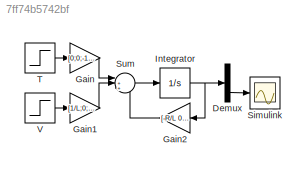
MODEL slx_7ff74b5742bf
KIND model
CONFIG AbsTol = auto
CONFIG EnableMultiTasking = off
CONFIG FixedStep = auto
CONFIG MaxStep = auto
CONFIG MinStep = auto
CONFIG RelTol = 1e-3
CONFIG SampleTimeConstraint = Unconstrained
CONFIG SolverName = VariableStepAuto
CONFIG StartTime = 0.0
CONFIG StopTime = 10.0
BLOCK [Demux] Demux
  Outputs = 3
BLOCK [Gain] Gain
  Gain = [0;0;-1/J]
BLOCK [Gain] Gain1
  Gain = [1/L;0;0]
BLOCK [Gain] Gain2
  Gain = [-R/L 0 -K/L;0 0 1;K/J 0 -B/J]
  Multiplication = Matrix(K*u)
  NameLocation = top
BLOCK [Integrator] Integrator
BLOCK [Scope] Simulink
  Floating = off
  NumInputPorts = 1
  ScopeSpecificationString = Simulink.scopes.TimeScopeBlockCfg('CurrentConfiguration', extmgr.ConfigurationSet(extmgr.Configuration('Core','General UI',true),extmgr.Configuration('Core','Source UI',true),extmgr.Configuration('Sources','WiredSimulink',true),extmgr.Configuration('Visuals','Time Domain',true,'SerializedDisplays',{struct('MinYLimReal','-2.50002','MaxYLimReal','22.50022','YLabelReal','','MinYLimMag','0.00000','Max...<+1360ch>
BLOCK [Sum] Sum
  Inputs = |+++
BLOCK [Step] T
  After = 0
  SampleTime = 0
  Time = 0
BLOCK [Step] V
  After = 5
  SampleTime = 0
  Time = 0
LINE Demux:3 -> Simulink:1
LINE Gain1:1 -> Sum:2
LINE Gain2:1 -> Sum:3
LINE Gain:1 -> Sum:1
NET Integrator:1 -> Demux:1, Gain2:1
LINE Sum:1 -> Integrator:1
LINE T:1 -> Gain:1
LINE V:1 -> Gain1:1
note: NET lines group one-source signal fan-out (src -> all destinations, sorted); 1:1 wires keep LINE
